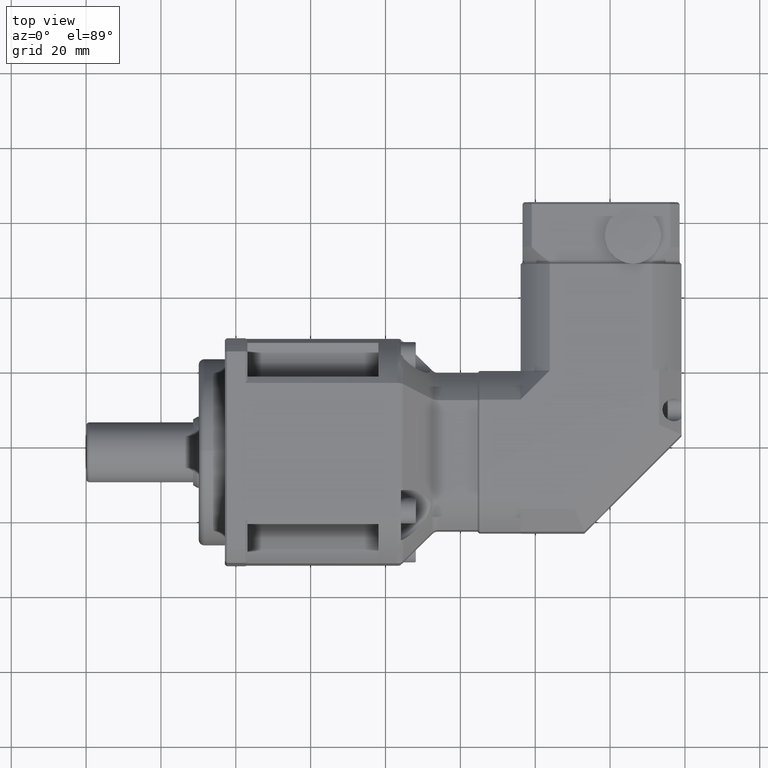
[diagram: clean part render]
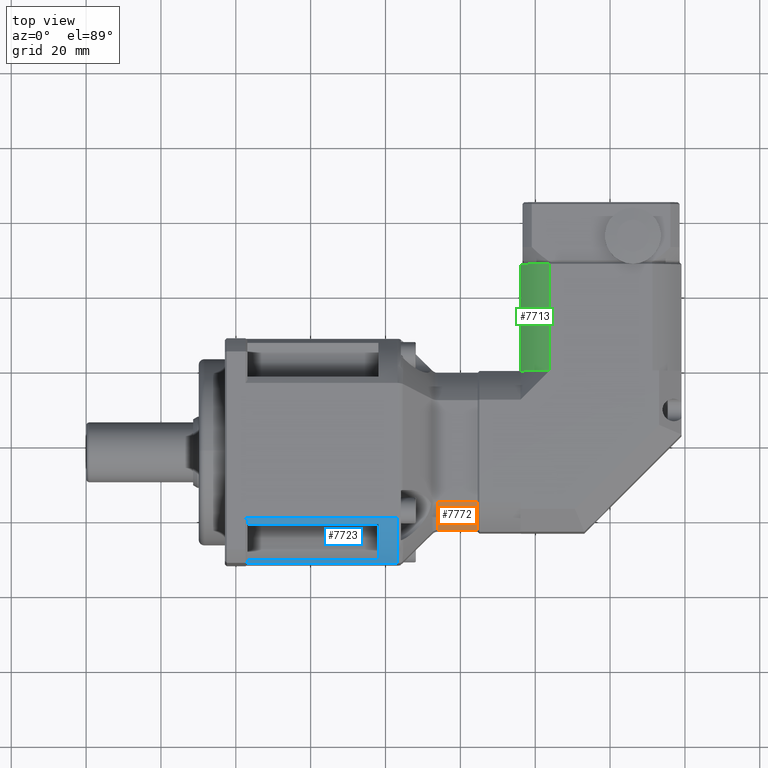
[diagram: same view with three faces highlighted in distinct colors, each labeled with its STEP entity id]
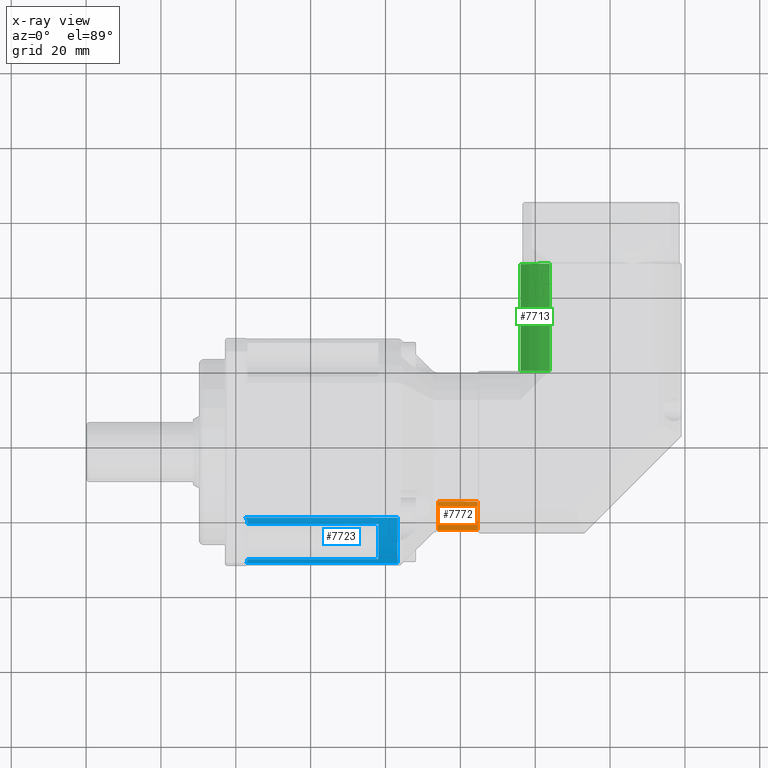
[diagram: x-ray of the same camera — body ghosted, the three highlighted faces saturated]
A machine part, top view with three faces highlighted in distinct colors.
The next image is the same camera in x-ray (body ghosted, the three faces saturated) — at least one of them is partly hidden behind the body in this view.
Their STEP definitions:

[orange] entity #7772 — the highlighted cylindrical surface (partial cylindrical patch) has radius 25 mm, axis along (-1, -0, 0).
#129=B_SPLINE_CURVE_WITH_KNOTS('',3,(#12813,#12814,#12815,#12816),
 .UNSPECIFIED.,.F.,.F.,(4,4),(0.00795565384757205,1.15212985470496),
 .UNSPECIFIED.);
#692=LINE('',#12788,#1087);
#697=LINE('',#12817,#1092);
#1087=VECTOR('',#10277,10.6102454127815);
#1092=VECTOR('',#10286,10.6102454127815);
#1989=FACE_OUTER_BOUND('',#2632,.T.);
#2632=EDGE_LOOP('',(#6225,#6226,#6227,#6228));
#3101=CIRCLE('',#8409,25.);
#3606=VERTEX_POINT('',#12218);
#3611=VERTEX_POINT('',#12244);
#3736=VERTEX_POINT('',#12783);
#3742=VERTEX_POINT('',#12812);
#4441=EDGE_CURVE('',#3606,#3611,#3101,.T.);
#4630=EDGE_CURVE('',#3736,#3606,#692,.T.);
#4638=EDGE_CURVE('',#3742,#3736,#129,.T.);
#4639=EDGE_CURVE('',#3611,#3742,#697,.T.);
#6225=ORIENTED_EDGE('',*,*,#4638,.F.);
#6226=ORIENTED_EDGE('',*,*,#4639,.F.);
#6227=ORIENTED_EDGE('',*,*,#4441,.F.);
#6228=ORIENTED_EDGE('',*,*,#4630,.F.);
#7071=CYLINDRICAL_SURFACE('',#8568,25.);
#7772=ADVANCED_FACE('',(#1989),#7071,.T.);
#8409=AXIS2_PLACEMENT_3D('',#12280,#9877,#9878);
#8568=AXIS2_PLACEMENT_3D('',#12811,#10284,#10285);
#9877=DIRECTION('center_axis',(1.,1.03196878897672E-16,-2.46234633523121E-15));
#9878=DIRECTION('ref_axis',(2.46234633523121E-15,-1.78936726547007E-15,
1.));
#10277=DIRECTION('',(1.,1.03196878897672E-16,-2.46234633523121E-15));
#10284=DIRECTION('center_axis',(-1.,-1.03196878897672E-16,2.46234633523121E-15));
#10285=DIRECTION('ref_axis',(2.46234633523121E-15,-1.78936726547007E-15,
1.));
#10286=DIRECTION('',(-1.,-1.03196878897672E-16,2.46234633523121E-15));
#12218=CARTESIAN_POINT('',(-35.4042359944936,4.7048902698157,-23.1748868126961));
#12244=CARTESIAN_POINT('',(-35.4042359944936,-2.73044976393374,-30.6102268464456));
#12280=CARTESIAN_POINT('Origin',(-35.4042359944937,18.2695502360663,-44.1748868126961));
#12783=CARTESIAN_POINT('',(-46.0144814072751,4.7048902698157,-23.1748868126961));
#12788=CARTESIAN_POINT('',(-35.4042359944936,4.7048902698157,-23.1748868126961));
#12811=CARTESIAN_POINT('Origin',(-35.4042359944937,18.2695502360663,-44.1748868126961));
#12812=CARTESIAN_POINT('',(-46.0144814072752,-2.73044976393374,-30.6102268464455));
#12813=CARTESIAN_POINT('Ctrl Pts',(-46.0144814067699,-2.73044855423815,
-30.6102279577377));
#12814=CARTESIAN_POINT('Ctrl Pts',(-46.013186870617,-0.814242540407403,
-27.6439558684458));
#12815=CARTESIAN_POINT('Ctrl Pts',(-46.013186870617,1.73861929181587,-25.0910940362225));
#12816=CARTESIAN_POINT('Ctrl Pts',(-46.0144814067699,4.70489138110785,-23.1748880223917));
#12817=CARTESIAN_POINT('',(-35.4042359944936,-2.73044976393374,-30.6102268464456));

[blue] entity #7723 — the highlighted cylindrical surface (partial cylindrical patch) has radius 35 mm, axis along (-1, -0, 0).
#37=ELLIPSE('',#8470,49.4974746830583,35.);
#38=ELLIPSE('',#8471,49.4974746830583,35.);
#99=B_SPLINE_CURVE_WITH_KNOTS('',3,(#12471,#12472,#12473,#12474),
 .UNSPECIFIED.,.F.,.F.,(4,4),(-0.00518223119568725,1.60718258878677),
 .UNSPECIFIED.);
#649=LINE('',#12459,#1044);
#650=LINE('',#12463,#1045);
#651=LINE('',#12469,#1046);
#652=LINE('',#12476,#1047);
#1044=VECTOR('',#10036,35.);
#1045=VECTOR('',#10039,35.);
#1046=VECTOR('',#10044,40.6085212039556);
#1047=VECTOR('',#10045,40.6085212039556);
#1940=FACE_OUTER_BOUND('',#2566,.T.);
#2566=EDGE_LOOP('',(#5980,#5981,#5982,#5983,#5984,#5985,#5986,#5987,#5988,
#5989));
#3121=CIRCLE('',#8468,35.);
#3122=CIRCLE('',#8469,35.);
#3123=CIRCLE('',#8472,35.);
#3656=VERTEX_POINT('',#12457);
#3657=VERTEX_POINT('',#12458);
#3658=VERTEX_POINT('',#12460);
#3659=VERTEX_POINT('',#12462);
#3660=VERTEX_POINT('',#12464);
#3661=VERTEX_POINT('',#12466);
#3662=VERTEX_POINT('',#12468);
#3663=VERTEX_POINT('',#12470);
#3664=VERTEX_POINT('',#12475);
#3665=VERTEX_POINT('',#12477);
#4508=EDGE_CURVE('',#3656,#3657,#649,.T.);
#4509=EDGE_CURVE('',#3658,#3657,#3121,.T.);
#4510=EDGE_CURVE('',#3658,#3659,#650,.T.);
#4511=EDGE_CURVE('',#3659,#3660,#3122,.T.);
#4512=EDGE_CURVE('',#3661,#3660,#37,.F.);
#4513=EDGE_CURVE('',#3662,#3661,#651,.T.);
#4514=EDGE_CURVE('',#3663,#3662,#99,.T.);
#4515=EDGE_CURVE('',#3664,#3663,#652,.T.);
#4516=EDGE_CURVE('',#3665,#3664,#38,.F.);
#4517=EDGE_CURVE('',#3665,#3656,#3123,.T.);
#5980=ORIENTED_EDGE('',*,*,#4508,.T.);
#5981=ORIENTED_EDGE('',*,*,#4509,.F.);
#5982=ORIENTED_EDGE('',*,*,#4510,.T.);
#5983=ORIENTED_EDGE('',*,*,#4511,.T.);
#5984=ORIENTED_EDGE('',*,*,#4512,.F.);
#5985=ORIENTED_EDGE('',*,*,#4513,.F.);
#5986=ORIENTED_EDGE('',*,*,#4514,.F.);
#5987=ORIENTED_EDGE('',*,*,#4515,.F.);
#5988=ORIENTED_EDGE('',*,*,#4516,.F.);
#5989=ORIENTED_EDGE('',*,*,#4517,.T.);
#7056=CYLINDRICAL_SURFACE('',#8467,35.);
#7723=ADVANCED_FACE('',(#1940),#7056,.T.);
#8467=AXIS2_PLACEMENT_3D('',#12456,#10034,#10035);
#8468=AXIS2_PLACEMENT_3D('',#12461,#10037,#10038);
#8469=AXIS2_PLACEMENT_3D('',#12465,#10040,#10041);
#8470=AXIS2_PLACEMENT_3D('',#12467,#10042,#10043);
#8471=AXIS2_PLACEMENT_3D('',#12478,#10046,#10047);
#8472=AXIS2_PLACEMENT_3D('',#12479,#10048,#10049);
#10034=DIRECTION('center_axis',(-1.,-5.87515604742735E-16,1.08949767224559E-15));
#10035=DIRECTION('ref_axis',(1.08949767224559E-15,-2.51134257432613E-15,
1.));
#10036=DIRECTION('',(1.,5.87515604742735E-16,-1.08949767224559E-15));
#10037=DIRECTION('center_axis',(-1.,-1.03196878897672E-16,2.46234633523121E-15));
#10038=DIRECTION('ref_axis',(-2.46234633523121E-15,1.78936726547007E-15,
-1.));
#10039=DIRECTION('',(-1.,-5.87515604742735E-16,1.08949767224559E-15));
#10040=DIRECTION('center_axis',(1.,5.87515604742735E-16,-1.08949767224559E-15));
#10041=DIRECTION('ref_axis',(1.08949767224559E-15,-2.51134257432613E-15,
1.));
#10042=DIRECTION('center_axis',(0.707106781186548,-0.707106781186547,-2.5461785563203E-15));
#10043=DIRECTION('ref_axis',(0.707106781186547,0.707106781186548,1.00539617205667E-15));
#10044=DIRECTION('',(-1.,-5.87515604742735E-16,1.08949767224559E-15));
#10045=DIRECTION('',(1.,5.87515604742735E-16,-1.08949767224559E-15));
#10046=DIRECTION('center_axis',(0.707106781186548,-1.41268751131144E-15,
0.707106781186547));
#10047=DIRECTION('ref_axis',(-0.707106781186547,-2.19122363235499E-15,0.707106781186548));
#10048=DIRECTION('center_axis',(1.,5.87515604742735E-16,-1.08949767224559E-15));
#10049=DIRECTION('ref_axis',(1.08949767224559E-15,-2.51134257432613E-15,
1.));
#12456=CARTESIAN_POINT('Origin',(-61.9042359944935,18.2695502360663,-44.174886812696));
#12457=CARTESIAN_POINT('',(-96.9042359944935,-1.45583736273144,-15.2627944623109));
#12458=CARTESIAN_POINT('',(-61.9042359944935,-1.45583736273143,-15.2627944623109));
#12459=CARTESIAN_POINT('',(-61.9042359944935,-1.45583736273143,-15.2627944623109));
#12460=CARTESIAN_POINT('',(-61.9042359944935,-10.642542114319,-24.4494992138985));
#12461=CARTESIAN_POINT('Origin',(-61.9042359944937,18.2695502360663,-44.174886812696));
#12462=CARTESIAN_POINT('',(-96.9042359944935,-10.642542114319,-24.4494992138985));
#12463=CARTESIAN_POINT('',(-61.9042359944935,-10.642542114319,-24.4494992138985));
#12464=CARTESIAN_POINT('',(-96.9042359944935,-11.2304497639338,-25.3400786108587));
#12465=CARTESIAN_POINT('Origin',(-96.9042359944935,18.2695502360663,-44.174886812696));
#12466=CARTESIAN_POINT('',(-97.4042359944935,-11.7304497639338,-26.1471304353761));
#12467=CARTESIAN_POINT('Origin',(-67.4042359944935,18.2695502360663,-44.174886812696));
#12468=CARTESIAN_POINT('',(-56.795714790538,-11.7304497639338,-26.1471304353761));
#12469=CARTESIAN_POINT('',(-61.9042359944935,-11.7304497639338,-26.1471304353762));
#12470=CARTESIAN_POINT('',(-56.795714790538,0.241793858746298,-14.174886812696));
#12471=CARTESIAN_POINT('Ctrl Pts',(-56.7957147905419,0.241793886924918,
-14.1748868439548));
#12472=CARTESIAN_POINT('Ctrl Pts',(-56.7947101281728,-4.64413376962284,
-17.1110090119011));
#12473=CARTESIAN_POINT('Ctrl Pts',(-56.7947101289318,-8.79432127208344,
-21.2612082896396));
#12474=CARTESIAN_POINT('Ctrl Pts',(-56.7957147905438,-11.7304497179462,
-26.1471304767808));
#12475=CARTESIAN_POINT('',(-97.4042359944935,0.241793858746235,-14.174886812696));
#12476=CARTESIAN_POINT('',(-61.9042359944935,0.24179385874626,-14.1748868126961));
#12477=CARTESIAN_POINT('',(-96.9042359944935,-0.565257965771178,-14.674886812696));
#12478=CARTESIAN_POINT('Origin',(-67.4042359944935,18.2695502360663,-44.174886812696));
#12479=CARTESIAN_POINT('Origin',(-96.9042359944935,18.2695502360663,-44.174886812696));

[green] entity #7713 — the highlighted cylindrical surface (partial cylindrical patch) has radius 25.5 mm, axis along (0, -1, -0).
#591=LINE('',#12198,#986);
#634=LINE('',#12406,#1029);
#986=VECTOR('',#9838,28.5);
#1029=VECTOR('',#9993,28.5);
#1930=FACE_OUTER_BOUND('',#2554,.T.);
#2554=EDGE_LOOP('',(#5932,#5933,#5934,#5935));
#3089=CIRCLE('',#8380,25.5);
#3107=CIRCLE('',#8420,25.5);
#3577=VERTEX_POINT('',#12116);
#3578=VERTEX_POINT('',#12123);
#3596=VERTEX_POINT('',#12197);
#3632=VERTEX_POINT('',#12336);
#4385=EDGE_CURVE('',#3578,#3577,#3089,.T.);
#4412=EDGE_CURVE('',#3577,#3596,#591,.T.);
#4463=EDGE_CURVE('',#3632,#3596,#3107,.T.);
#4487=EDGE_CURVE('',#3632,#3578,#634,.T.);
#5932=ORIENTED_EDGE('',*,*,#4385,.F.);
#5933=ORIENTED_EDGE('',*,*,#4487,.F.);
#5934=ORIENTED_EDGE('',*,*,#4463,.T.);
#5935=ORIENTED_EDGE('',*,*,#4412,.F.);
#7050=CYLINDRICAL_SURFACE('',#8453,25.5);
#7713=ADVANCED_FACE('',(#1930),#7050,.T.);
#8380=AXIS2_PLACEMENT_3D('',#12128,#9788,#9789);
#8420=AXIS2_PLACEMENT_3D('',#12337,#9915,#9916);
#8453=AXIS2_PLACEMENT_3D('',#12405,#9991,#9992);
#9788=DIRECTION('center_axis',(-7.02824524377793E-16,1.,7.4313826553568E-16));
#9789=DIRECTION('ref_axis',(-1.,-7.02824524377793E-16,7.15864935837998E-17));
#9838=DIRECTION('',(7.02824524377793E-16,-1.,-7.4313826553568E-16));
#9915=DIRECTION('center_axis',(-7.02824524377793E-16,1.,7.4313826553568E-16));
#9916=DIRECTION('ref_axis',(-1.,-7.02824524377793E-16,7.15864935837998E-17));
#9991=DIRECTION('center_axis',(7.02824524377793E-16,-1.,-7.4313826553568E-16));
#9992=DIRECTION('ref_axis',(-1.,-7.02824524377793E-16,7.15864935837998E-17));
#9993=DIRECTION('',(-7.02824524377793E-16,1.,7.4313826553568E-16));
#12116=CARTESIAN_POINT('',(-16.1155451953725,68.2695502360663,-22.674886812696));
#12123=CARTESIAN_POINT('',(-23.9042359944646,68.2695502360663,-30.4635776118129));
#12128=CARTESIAN_POINT('Origin',(-2.40423599447915,68.2695502360663,-44.1748868126378));
#12197=CARTESIAN_POINT('',(-16.1155451953725,39.7695502360663,-22.6748868126961));
#12198=CARTESIAN_POINT('',(-16.1155451953725,68.7695502360663,-22.674886812696));
#12336=CARTESIAN_POINT('',(-23.9042359944646,39.7695502360663,-30.463577611894));
#12337=CARTESIAN_POINT('Origin',(-2.40423599447912,39.7695502360663,-44.1748868126379));
#12405=CARTESIAN_POINT('Origin',(-2.40423599447915,68.7695502360663,-44.1748868126378));
#12406=CARTESIAN_POINT('',(-23.9042359944646,68.7695502360663,-30.4635776118129));